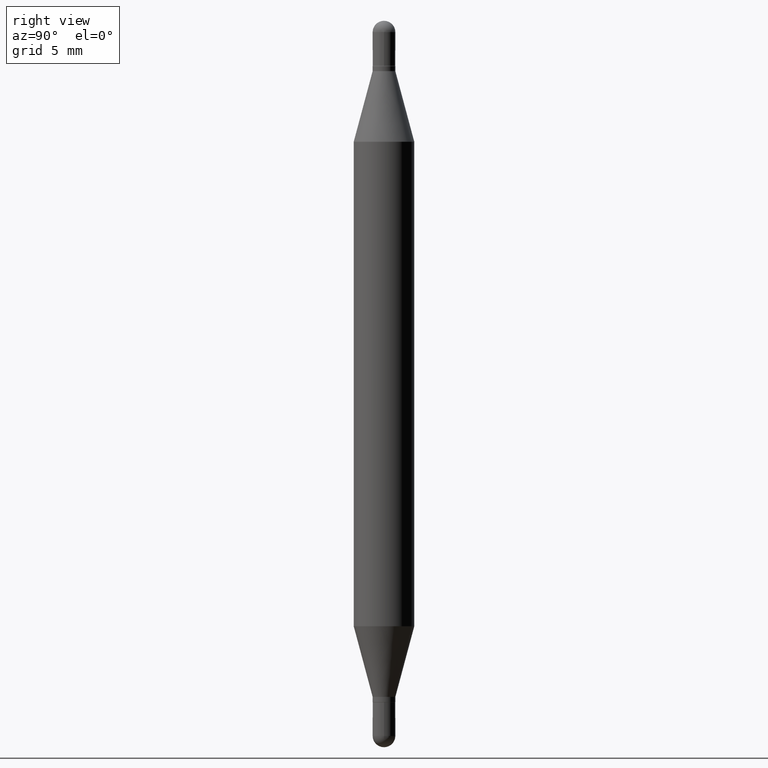
[diagram: clean part render]
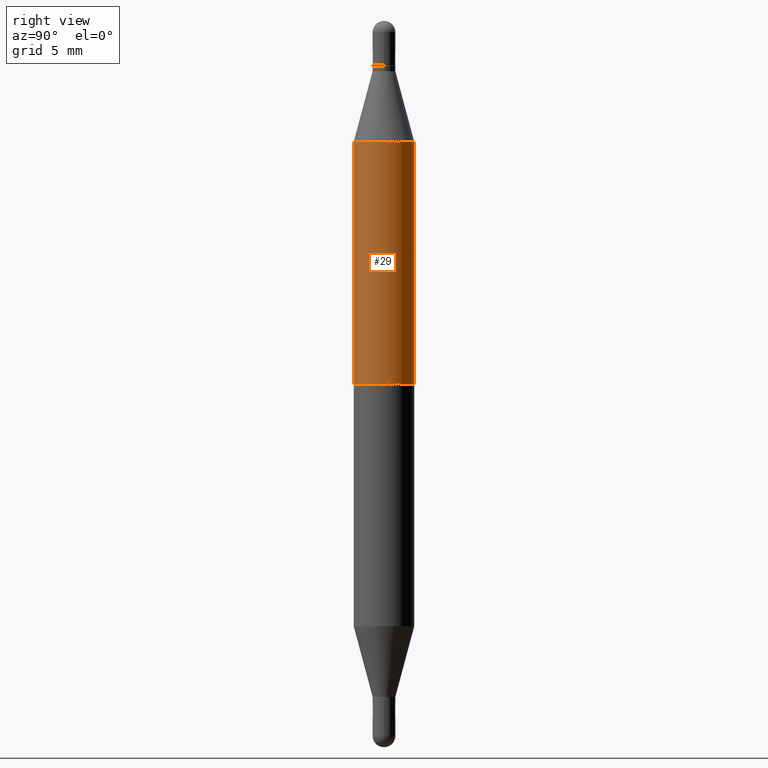
[diagram: same view with one face highlighted and labeled with its STEP entity id]
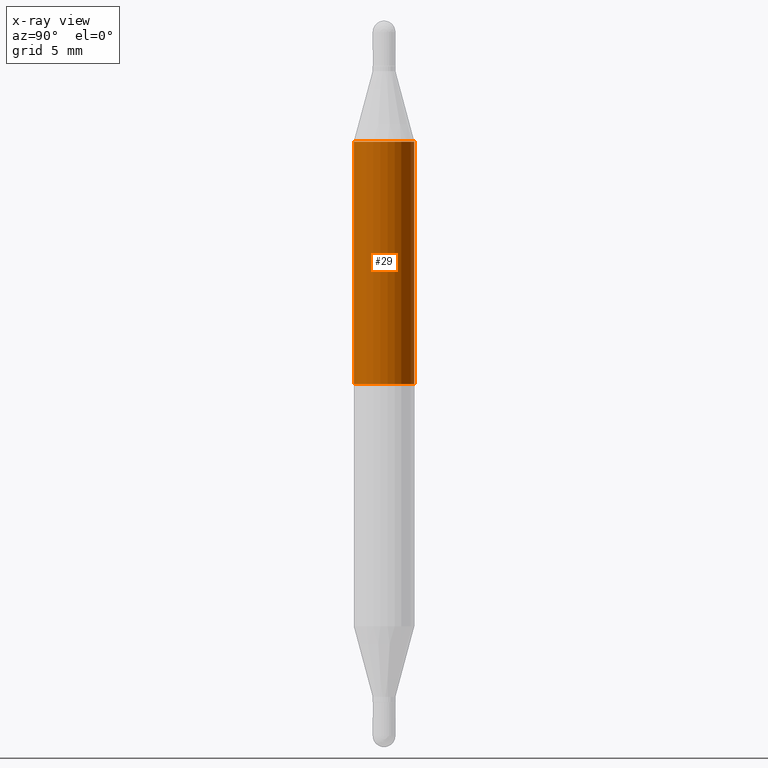
[diagram: x-ray of the same camera — body ghosted, the highlighted face saturated]
A machine part, right view. The second image highlights one B-rep face of the part: STEP entity #29.
The next image is the same camera in x-ray: the body ghosted, the highlighted face saturated — about 0% of this face is hidden behind the body in this view.
In plain terms, the highlighted cylindrical surface (edge-blend (fillet) strip) has radius 1.5875 mm, axis along (-0, -0, -1).
Its self-contained STEP definition (entity closure, byte-faithful):
#11 = VERTEX_POINT ( 'NONE', #868 ) ;
#29 = ADVANCED_FACE ( 'NONE', ( #970 ), #1118, .T. ) ;
#77 = EDGE_CURVE ( 'NONE', #1017, #519, #440, .T. ) ;
#172 = DIRECTION ( 'NONE',  ( 2.445236134647148401E-29, 3.479281268092587751E-15, 1.000000000000000000 ) ) ;
#182 = LINE ( 'NONE', #869, #252 ) ;
#217 = ORIENTED_EDGE ( 'NONE', *, *, #311, .F. ) ;
#223 = CARTESIAN_POINT ( 'NONE',  ( 1.833927100985360740E-29, -2.618860903296288775E-15, -0.7499999999999997780 ) ) ;
#252 = VECTOR ( 'NONE', #358, 39.37007874015748143 ) ;
#258 = CARTESIAN_POINT ( 'NONE',  ( 3.057189282543616555E-29, -8.783037710192168733E-16, -0.2497365840355639799 ) ) ;
#272 = CARTESIAN_POINT ( 'NONE',  ( 0.000000000000000000, -5.228321854365729194E-15, -1.499999999999999556 ) ) ;
#303 = ORIENTED_EDGE ( 'NONE', *, *, #520, .F. ) ;
#311 = EDGE_CURVE ( 'NONE', #519, #11, #334, .T. ) ;
#330 = CARTESIAN_POINT ( 'NONE',  ( 4.287811248607206733E-16, 0.06249999999999477501, -1.499999999999999778 ) ) ;
#334 = LINE ( 'NONE', #330, #987 ) ;
#358 = DIRECTION ( 'NONE',  ( -2.445236134647148681E-29, -3.479281268092587357E-15, -1.000000000000000000 ) ) ;
#440 = CIRCLE ( 'NONE', #852, 0.06250000000000000000 ) ;
#473 = CARTESIAN_POINT ( 'NONE',  ( 4.287811248607511924E-16, 0.06249999999999911876, -0.2497365840355641742 ) ) ;
#477 = CIRCLE ( 'NONE', #1074, 0.06250000000000000000 ) ;
#507 = DIRECTION ( 'NONE',  ( -2.445236134647148401E-29, -3.479281268092587751E-15, -1.000000000000000000 ) ) ;
#514 = DIRECTION ( 'NONE',  ( -6.982962677686265922E-15, -1.000000000000000000, 3.278217592397115862E-15 ) ) ;
#519 = VERTEX_POINT ( 'NONE', #473 ) ;
#520 = EDGE_CURVE ( 'NONE', #11, #722, #477, .T. ) ;
#530 = ORIENTED_EDGE ( 'NONE', *, *, #598, .T. ) ;
#598 = EDGE_CURVE ( 'NONE', #1017, #722, #182, .T. ) ;
#601 = DIRECTION ( 'NONE',  ( -6.982962677686265922E-15, -1.000000000000000000, 4.370956789862821150E-15 ) ) ;
#621 = EDGE_LOOP ( 'NONE', ( #217, #1084, #530, #303 ) ) ;
#635 = DIRECTION ( 'NONE',  ( -0.000000000000000000, -3.485547902910486918E-15, -1.000000000000000000 ) ) ;
#722 = VERTEX_POINT ( 'NONE', #877 ) ;
#808 = AXIS2_PLACEMENT_3D ( 'NONE', #272, #507, #601 ) ;
#852 = AXIS2_PLACEMENT_3D ( 'NONE', #258, #172, #514 ) ;
#868 = CARTESIAN_POINT ( 'NONE',  ( 4.287811248607451280E-16, 0.06249999999999737710, -0.7500000000000001110 ) ) ;
#869 = CARTESIAN_POINT ( 'NONE',  ( -4.364351673553916201E-16, -0.06250000000000521805, -1.499999999999999334 ) ) ;
#877 = CARTESIAN_POINT ( 'NONE',  ( -4.364351673553732791E-16, -0.06250000000000262290, -0.7499999999999995559 ) ) ;
#908 = DIRECTION ( 'NONE',  ( 0.000000000000000000, 1.000000000000000000, -4.370956789862821150E-15 ) ) ;
#970 = FACE_OUTER_BOUND ( 'NONE', #621, .T. ) ;
#987 = VECTOR ( 'NONE', #1101, 39.37007874015748143 ) ;
#1017 = VERTEX_POINT ( 'NONE', #1045 ) ;
#1045 = CARTESIAN_POINT ( 'NONE',  ( -4.364351673553611010E-16, -0.06250000000000087430, -0.2497365840355637856 ) ) ;
#1074 = AXIS2_PLACEMENT_3D ( 'NONE', #223, #635, #908 ) ;
#1084 = ORIENTED_EDGE ( 'NONE', *, *, #77, .F. ) ;
#1101 = DIRECTION ( 'NONE',  ( -2.445236134647148681E-29, -3.479281268092587357E-15, -1.000000000000000000 ) ) ;
#1118 = CYLINDRICAL_SURFACE ( 'NONE', #808, 0.06250000000000000000 ) ;